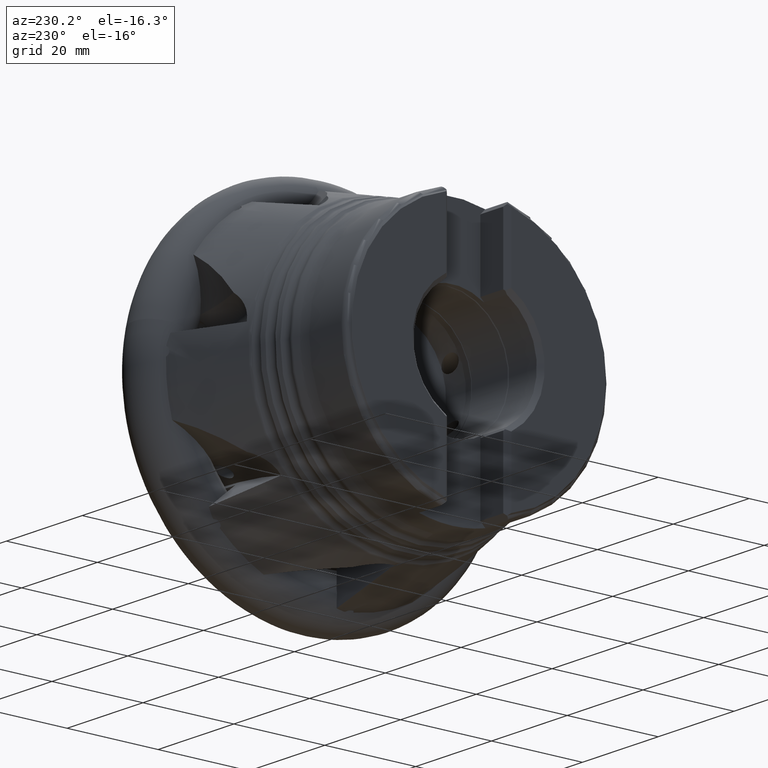
[diagram: clean part render]
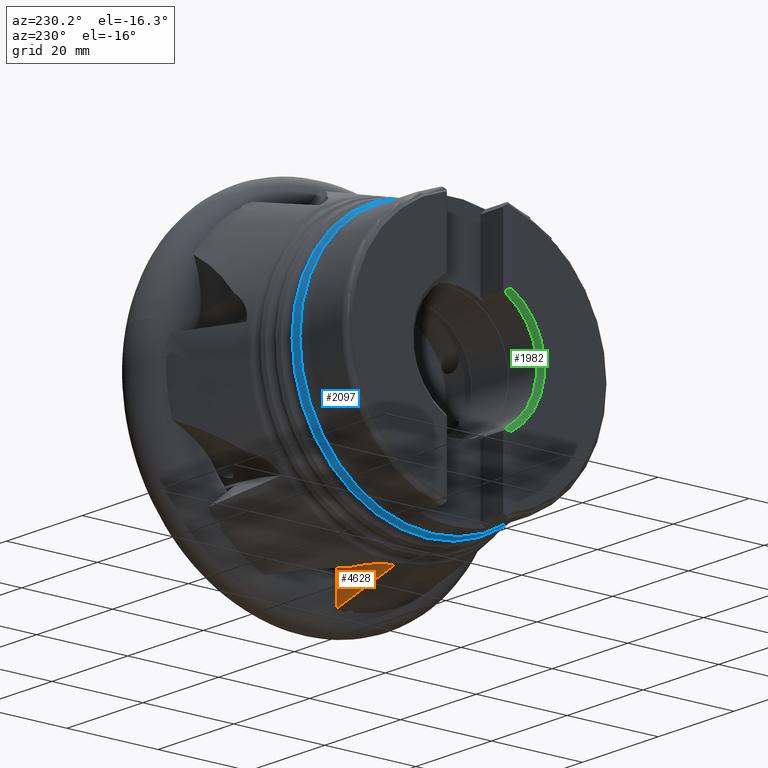
[diagram: same view with three faces highlighted in distinct colors, each labeled with its STEP entity id]
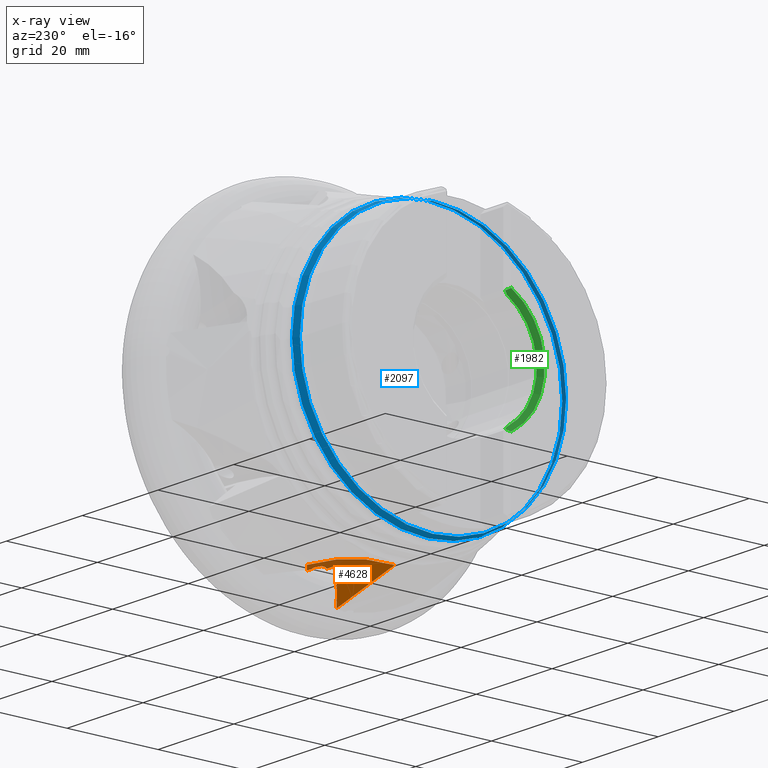
[diagram: x-ray of the same camera — body ghosted, the three highlighted faces saturated]
A machine part, auxiliary view with three faces highlighted in distinct colors.
The next image is the same camera in x-ray (body ghosted, the three faces saturated) — at least one of them is partly hidden behind the body in this view.
Their STEP definitions:

[orange] entity #4628 — the highlighted planar face has unit normal (0, -1, 0).
#4 = DIRECTION ( 'NONE',  ( 0.0000000000000000000, -0.0000000000000000000, -1.000000000000000000 ) ) ;
#31 = CARTESIAN_POINT ( 'NONE',  ( 8.049910237884031900E-015, -0.4999999999999995600, -92.73467639423688500 ) ) ;
#96 = LINE ( 'NONE', #3891, #103 ) ;
#103 = VECTOR ( 'NONE', #2852, 1000.000000000000000 ) ;
#105 = CARTESIAN_POINT ( 'NONE',  ( -10.53275845334866600, -0.4999999999999995600, -35.03540062909561200 ) ) ;
#174 = EDGE_CURVE ( 'NONE', #2457, #1430, #5767, .T. ) ;
#206 = LINE ( 'NONE', #983, #5390 ) ;
#432 = CARTESIAN_POINT ( 'NONE',  ( -19.36529589089470700, -0.5000000000000000000, -34.02495124520011400 ) ) ;
#453 = CARTESIAN_POINT ( 'NONE',  ( -10.53275845334866600, -0.5000000000000000000, -36.45980708519709900 ) ) ;
#481 = DIRECTION ( 'NONE',  ( 1.000000000000000000, -0.0000000000000000000, -3.682080252403440600E-016 ) ) ;
#530 = DIRECTION ( 'NONE',  ( 0.0000000000000000000, 0.0000000000000000000, 1.000000000000000000 ) ) ;
#626 = ORIENTED_EDGE ( 'NONE', *, *, #4750, .F. ) ;
#636 = LINE ( 'NONE', #3339, #4171 ) ;
#643 = EDGE_CURVE ( 'NONE', #3890, #5779, #1055, .T. ) ;
#702 = EDGE_CURVE ( 'NONE', #2457, #5981, #96, .T. ) ;
#868 = B_SPLINE_CURVE_WITH_KNOTS ( 'NONE', 3,
 ( #4784, #3753, #5807, #1805, #5302, #2283 ),
 .UNSPECIFIED., .F., .F.,
 ( 4, 2, 4 ),
 ( 0.02549318844404027700, 0.02659653124836304200, 0.02769987405268580600 ),
 .UNSPECIFIED. ) ;
#903 = VECTOR ( 'NONE', #940, 1000.000000000000000 ) ;
#920 = DIRECTION ( 'NONE',  ( 0.0000000000000000000, -1.000000000000000000, 0.0000000000000000000 ) ) ;
#940 = DIRECTION ( 'NONE',  ( 1.000000000000000000, -0.0000000000000000000, -0.0000000000000000000 ) ) ;
#954 = CARTESIAN_POINT ( 'NONE',  ( -14.94902862261664300, -0.5000000000000000000, -35.24238442699701300 ) ) ;
#983 = CARTESIAN_POINT ( 'NONE',  ( -5.772510203143357700, -0.4999999999999995600, -28.05864154665133000 ) ) ;
#1055 = LINE ( 'NONE', #5947, #903 ) ;
#1119 = CARTESIAN_POINT ( 'NONE',  ( -2.684159021131009600, -0.5000000000000004400, 0.0000000000000000000 ) ) ;
#1269 = ORIENTED_EDGE ( 'NONE', *, *, #174, .T. ) ;
#1310 = CARTESIAN_POINT ( 'NONE',  ( -25.76633205917305200, -0.4999999999999995600, -32.26035281082278100 ) ) ;
#1393 = EDGE_CURVE ( 'NONE', #3124, #2615, #868, .T. ) ;
#1430 = VERTEX_POINT ( 'NONE', #1310 ) ;
#1507 = ORIENTED_EDGE ( 'NONE', *, *, #3563, .T. ) ;
#1805 = CARTESIAN_POINT ( 'NONE',  ( -5.003449771525726700, -0.5000000000000000000, -27.95675597898149400 ) ) ;
#1874 = EDGE_CURVE ( 'NONE', #4118, #2615, #6026, .T. ) ;
#1962 = AXIS2_PLACEMENT_3D ( 'NONE', #2484, #920, #4 ) ;
#1984 = CARTESIAN_POINT ( 'NONE',  ( -25.76633205917305200, -0.4999999999999995600, -32.26035281082278100 ) ) ;
#1997 = DIRECTION ( 'NONE',  ( 0.0000000000000000000, 1.000000000000000000, 0.0000000000000000000 ) ) ;
#2105 = CARTESIAN_POINT ( 'NONE',  ( -10.59739075837735300, -0.5000000000000000000, -33.23319876871050800 ) ) ;
#2283 = CARTESIAN_POINT ( 'NONE',  ( -5.732449825851438700, -0.5000000000000000000, -28.05864154665835700 ) ) ;
#2345 = DIRECTION ( 'NONE',  ( -0.0000000000000000000, -0.0000000000000000000, 1.000000000000000000 ) ) ;
#2457 = VERTEX_POINT ( 'NONE', #2772 ) ;
#2465 = CARTESIAN_POINT ( 'NONE',  ( -10.53275845334866600, -0.4999999999999995600, -35.03540062909561200 ) ) ;
#2484 = CARTESIAN_POINT ( 'NONE',  ( -46.82801613358545700, -0.5000000000000000000, -46.60242535824576700 ) ) ;
#2523 = EDGE_CURVE ( 'NONE', #3124, #4478, #206, .T. ) ;
#2572 = CARTESIAN_POINT ( 'NONE',  ( -10.63010397403397500, -0.5000000000000000000, -33.59099401362970400 ) ) ;
#2613 = B_SPLINE_CURVE_WITH_KNOTS ( 'NONE', 3,
 ( #5641, #2105, #2572, #6154, #3077, #105 ),
 .UNSPECIFIED., .F., .F.,
 ( 4, 2, 4 ),
 ( 0.03489538358905709700, 0.03597279103640549400, 0.03705019848375389800 ),
 .UNSPECIFIED. ) ;
#2615 = VERTEX_POINT ( 'NONE', #3889 ) ;
#2772 = CARTESIAN_POINT ( 'NONE',  ( -10.53275845334866600, -0.5000000000000000000, -36.45980708519709900 ) ) ;
#2852 = DIRECTION ( 'NONE',  ( -0.0000000000000000000, -0.0000000000000000000, 1.000000000000000000 ) ) ;
#2938 = ORIENTED_EDGE ( 'NONE', *, *, #1393, .T. ) ;
#2956 = VECTOR ( 'NONE', #3098, 1000.000000000000000 ) ;
#2963 = CARTESIAN_POINT ( 'NONE',  ( -25.10474118897545600, -0.5000000000000000000, -32.44273674166792200 ) ) ;
#2976 = PLANE ( 'NONE',  #1962 ) ;
#3077 = CARTESIAN_POINT ( 'NONE',  ( -10.59786391923095300, -0.5000000000000000000, -34.67887673621380900 ) ) ;
#3098 = DIRECTION ( 'NONE',  ( 0.0000000000000000000, 0.0000000000000000000, 1.000000000000000000 ) ) ;
#3124 = VERTEX_POINT ( 'NONE', #3217 ) ;
#3217 = CARTESIAN_POINT ( 'NONE',  ( -3.528319268246618500, -0.5000000000000033300, -28.05864154665133000 ) ) ;
#3339 = CARTESIAN_POINT ( 'NONE',  ( -10.53275845334866600, -0.4999999999999995600, -40.89730970922777700 ) ) ;
#3421 = CARTESIAN_POINT ( 'NONE',  ( -23.78155916784575300, -0.5000000000000000000, -32.80750358500324600 ) ) ;
#3526 = DIRECTION ( 'NONE',  ( -0.0000000000000000000, 1.000000000000000000, -0.0000000000000000000 ) ) ;
#3563 = EDGE_CURVE ( 'NONE', #4849, #5981, #2613, .T. ) ;
#3613 = AXIS2_PLACEMENT_3D ( 'NONE', #4994, #1997, #5523 ) ;
#3621 = ORIENTED_EDGE ( 'NONE', *, *, #2523, .F. ) ;
#3653 = ORIENTED_EDGE ( 'NONE', *, *, #643, .F. ) ;
#3738 = CARTESIAN_POINT ( 'NONE',  ( -2.684159021131009600, -0.5000000000000000000, -28.05864154665133000 ) ) ;
#3753 = CARTESIAN_POINT ( 'NONE',  ( -3.890319731711858100, -0.5000000000000000000, -27.99098862393878000 ) ) ;
#3754 = CARTESIAN_POINT ( 'NONE',  ( -5.772510203143357700, -0.5000000000000000000, -28.05864154665133000 ) ) ;
#3860 = CARTESIAN_POINT ( 'NONE',  ( -10.53275845334866600, -0.5000000000000004400, -28.92199999999999700 ) ) ;
#3889 = CARTESIAN_POINT ( 'NONE',  ( -5.732449825851438700, -0.5000000000000000000, -28.05864154665835700 ) ) ;
#3890 = VERTEX_POINT ( 'NONE', #3860 ) ;
#3891 = CARTESIAN_POINT ( 'NONE',  ( -10.53275845334866600, -0.4999999999999995600, -40.89730970922777700 ) ) ;
#3898 = EDGE_CURVE ( 'NONE', #1430, #6222, #4285, .T. ) ;
#3969 = ORIENTED_EDGE ( 'NONE', *, *, #702, .F. ) ;
#4118 = VERTEX_POINT ( 'NONE', #3754 ) ;
#4171 = VECTOR ( 'NONE', #2345, 1000.000000000000000 ) ;
#4285 = CIRCLE ( 'NONE', #4688, 65.73467639423688500 ) ;
#4336 = CARTESIAN_POINT ( 'NONE',  ( -8.022439109956176000, -0.5000000000000000000, -28.92199999999999700 ) ) ;
#4474 = CARTESIAN_POINT ( 'NONE',  ( -10.53275845334866600, -0.4999999999999995600, -32.87926106976837600 ) ) ;
#4478 = VERTEX_POINT ( 'NONE', #3738 ) ;
#4528 = DIRECTION ( 'NONE',  ( 1.000000000000000000, -0.0000000000000000000, -3.682080252403440600E-016 ) ) ;
#4548 = CARTESIAN_POINT ( 'NONE',  ( -5.772510203143357700, -0.4999999999999995600, -28.05864154665133000 ) ) ;
#4628 = ADVANCED_FACE ( 'NONE', ( #5202 ), #2976, .F. ) ;
#4688 = AXIS2_PLACEMENT_3D ( 'NONE', #31, #3526, #530 ) ;
#4750 = EDGE_CURVE ( 'NONE', #4478, #6222, #5296, .T. ) ;
#4765 = EDGE_LOOP ( 'NONE', ( #3621, #2938, #5884, #6397, #3653, #5304, #1507, #3969, #1269, #4961, #626 ) ) ;
#4784 = CARTESIAN_POINT ( 'NONE',  ( -3.528319268246618500, -0.5000000000000033300, -28.05864154665133000 ) ) ;
#4818 = EDGE_CURVE ( 'NONE', #5779, #4118, #5124, .T. ) ;
#4849 = VERTEX_POINT ( 'NONE', #4474 ) ;
#4905 = VECTOR ( 'NONE', #4528, 1000.000000000000000 ) ;
#4922 = CARTESIAN_POINT ( 'NONE',  ( -2.684159021131009600, -0.4999999999999995600, -27.05482430088693100 ) ) ;
#4961 = ORIENTED_EDGE ( 'NONE', *, *, #3898, .T. ) ;
#4980 = CARTESIAN_POINT ( 'NONE',  ( -24.44315022363888800, -0.5000000000000000000, -32.62512032740031700 ) ) ;
#4994 = CARTESIAN_POINT ( 'NONE',  ( -5.772510203143357700, -0.4999999999999995600, -31.42199999999999000 ) ) ;
#5124 = CIRCLE ( 'NONE', #3613, 3.363358453348661100 ) ;
#5202 = FACE_OUTER_BOUND ( 'NONE', #4765, .T. ) ;
#5296 = LINE ( 'NONE', #1119, #2956 ) ;
#5302 = CARTESIAN_POINT ( 'NONE',  ( -5.369661141977717400, -0.5000000000000000000, -27.99084131635749300 ) ) ;
#5304 = ORIENTED_EDGE ( 'NONE', *, *, #6457, .F. ) ;
#5390 = VECTOR ( 'NONE', #481, 1000.000000000000000 ) ;
#5523 = DIRECTION ( 'NONE',  ( 0.0000000000000000000, 0.0000000000000000000, 1.000000000000000000 ) ) ;
#5641 = CARTESIAN_POINT ( 'NONE',  ( -10.53275845334866600, -0.4999999999999995600, -32.87926106976837600 ) ) ;
#5767 = B_SPLINE_CURVE_WITH_KNOTS ( 'NONE', 3,
 ( #453, #954, #432, #3421, #4980, #2963, #1984 ),
 .UNSPECIFIED., .F., .F.,
 ( 4, 3, 4 ),
 ( 0.02511398760421710100, 0.03885698732140936700, 0.04091579702599024100 ),
 .UNSPECIFIED. ) ;
#5779 = VERTEX_POINT ( 'NONE', #4336 ) ;
#5807 = CARTESIAN_POINT ( 'NONE',  ( -4.264149166876780600, -0.5000000000000000000, -27.95633513595106500 ) ) ;
#5884 = ORIENTED_EDGE ( 'NONE', *, *, #1874, .F. ) ;
#5947 = CARTESIAN_POINT ( 'NONE',  ( 9.807638226112164400, -0.4999999999999995600, -28.92199999999999700 ) ) ;
#5981 = VERTEX_POINT ( 'NONE', #2465 ) ;
#6026 = LINE ( 'NONE', #4548, #4905 ) ;
#6154 = CARTESIAN_POINT ( 'NONE',  ( -10.63066155495832100, -0.5000000000000000000, -34.31442415609517800 ) ) ;
#6222 = VERTEX_POINT ( 'NONE', #4922 ) ;
#6397 = ORIENTED_EDGE ( 'NONE', *, *, #4818, .F. ) ;
#6457 = EDGE_CURVE ( 'NONE', #4849, #3890, #636, .T. ) ;

[blue] entity #2097 — the highlighted conical surface has half-angle 15.41 deg.
#550 = CARTESIAN_POINT ( 'NONE',  ( -9.194248392429296100, 0.0000000000000000000, 0.0000000000000000000 ) ) ;
#555 = FACE_OUTER_BOUND ( 'NONE', #4625, .T. ) ;
#563 = FACE_BOUND ( 'NONE', #6254, .T. ) ;
#577 = DIRECTION ( 'NONE',  ( 1.000000000000000000, -0.0000000000000000000, -0.0000000000000000000 ) ) ;
#642 = VERTEX_POINT ( 'NONE', #4957 ) ;
#1045 = AXIS2_PLACEMENT_3D ( 'NONE', #1645, #5135, #2122 ) ;
#1087 = EDGE_CURVE ( 'NONE', #642, #642, #3154, .T. ) ;
#1125 = CIRCLE ( 'NONE', #4637, 29.28762351624091000 ) ;
#1541 = ORIENTED_EDGE ( 'NONE', *, *, #1087, .T. ) ;
#1645 = CARTESIAN_POINT ( 'NONE',  ( -35.02296725635950700, 0.0000000000000000000, 0.0000000000000000000 ) ) ;
#2032 = DIRECTION ( 'NONE',  ( 1.000000000000000000, -0.0000000000000000000, -0.0000000000000000000 ) ) ;
#2097 = ADVANCED_FACE ( 'NONE', ( #555, #563 ), #4000, .T. ) ;
#2122 = DIRECTION ( 'NONE',  ( 0.0000000000000000000, 0.0000000000000000000, 1.000000000000000000 ) ) ;
#3154 = CIRCLE ( 'NONE', #1045, 29.71271268514834000 ) ;
#3461 = CARTESIAN_POINT ( 'NONE',  ( -36.56514747153999400, 0.0000000000000000000, -29.28762351624091000 ) ) ;
#3544 = DIRECTION ( 'NONE',  ( 0.0000000000000000000, 0.0000000000000000000, -1.000000000000000000 ) ) ;
#3571 = CARTESIAN_POINT ( 'NONE',  ( -36.56514747153999400, 0.0000000000000000000, 0.0000000000000000000 ) ) ;
#3683 = AXIS2_PLACEMENT_3D ( 'NONE', #550, #2032, #3544 ) ;
#4000 = CONICAL_SURFACE ( 'NONE', #3683, 36.83218453917353200, 0.2689626919511460800 ) ;
#4076 = DIRECTION ( 'NONE',  ( 0.0000000000000000000, 0.0000000000000000000, -1.000000000000000000 ) ) ;
#4449 = ORIENTED_EDGE ( 'NONE', *, *, #4909, .T. ) ;
#4625 = EDGE_LOOP ( 'NONE', ( #1541 ) ) ;
#4637 = AXIS2_PLACEMENT_3D ( 'NONE', #3571, #577, #4076 ) ;
#4742 = VERTEX_POINT ( 'NONE', #3461 ) ;
#4909 = EDGE_CURVE ( 'NONE', #4742, #4742, #1125, .T. ) ;
#4957 = CARTESIAN_POINT ( 'NONE',  ( -35.02296725635950700, 0.0000000000000000000, 29.71271268514834000 ) ) ;
#5135 = DIRECTION ( 'NONE',  ( -1.000000000000000000, -0.0000000000000000000, -0.0000000000000000000 ) ) ;
#6254 = EDGE_LOOP ( 'NONE', ( #4449 ) ) ;

[green] entity #1982 — the highlighted conical surface has half-angle 45 deg.
#109 = ORIENTED_EDGE ( 'NONE', *, *, #1854, .F. ) ;
#151 = ORIENTED_EDGE ( 'NONE', *, *, #2879, .F. ) ;
#237 = ORIENTED_EDGE ( 'NONE', *, *, #1097, .T. ) ;
#286 = CARTESIAN_POINT ( 'NONE',  ( -48.15476084923346200, -6.663760849233477200, 12.35728477548641500 ) ) ;
#461 = B_SPLINE_CURVE_WITH_KNOTS ( 'NONE', 3,
 ( #4643, #4123, #5694, #2620 ),
 .UNSPECIFIED., .F., .F.,
 ( 4, 4 ),
 ( 0.0003234589733736610200, 0.001458499937099704500 ),
 .UNSPECIFIED. ) ;
#518 = CARTESIAN_POINT ( 'NONE',  ( -47.91260739461696300, -6.421607394616974500, 12.21103329250231400 ) ) ;
#629 = B_SPLINE_CURVE_WITH_KNOTS ( 'NONE', 3,
 ( #1831, #2787, #6378, #3299 ),
 .UNSPECIFIED., .F., .F.,
 ( 4, 4 ),
 ( 0.004722597664356591700, 0.005496304512859474100 ),
 .UNSPECIFIED. ) ;
#1097 = EDGE_CURVE ( 'NONE', #4691, #5148, #2681, .T. ) ;
#1148 = DIRECTION ( 'NONE',  ( -1.000000000000000000, 0.0000000000000000000, 0.0000000000000000000 ) ) ;
#1221 = EDGE_CURVE ( 'NONE', #5922, #4284, #2423, .T. ) ;
#1496 = VERTEX_POINT ( 'NONE', #5366 ) ;
#1671 = CARTESIAN_POINT ( 'NONE',  ( -47.69099999999999500, 0.0000000000000000000, 0.0000000000000000000 ) ) ;
#1831 = CARTESIAN_POINT ( 'NONE',  ( -47.90095666549106600, -6.409956665491083800, -12.20399466633745300 ) ) ;
#1854 = EDGE_CURVE ( 'NONE', #5922, #1496, #6467, .T. ) ;
#1982 = ADVANCED_FACE ( 'NONE', ( #6369 ), #2509, .F. ) ;
#2146 = DIRECTION ( 'NONE',  ( 0.0000000000000000000, 0.0000000000000000000, -1.000000000000000000 ) ) ;
#2423 = CIRCLE ( 'NONE', #3164, 13.57499999999999400 ) ;
#2467 = CARTESIAN_POINT ( 'NONE',  ( -47.90095666549106600, -6.409956665491083800, -12.20399466633745300 ) ) ;
#2491 = B_SPLINE_CURVE_WITH_KNOTS ( 'NONE', 3,
 ( #6357, #4792, #286, #3779 ),
 .UNSPECIFIED., .F., .F.,
 ( 4, 4 ),
 ( 7.678002105158196600E-005, 0.001193904132901946100 ),
 .UNSPECIFIED. ) ;
#2509 = CONICAL_SURFACE ( 'NONE', #5082, 13.57499999999999400, 0.7853981633974501700 ) ;
#2620 = CARTESIAN_POINT ( 'NONE',  ( -48.64099999999999800, -7.150000000000014600, -12.64330356354697700 ) ) ;
#2681 = CIRCLE ( 'NONE', #6444, 14.52499999999999700 ) ;
#2787 = CARTESIAN_POINT ( 'NONE',  ( -47.82539131629145100, -6.583237929944124800, -12.02762696714860600 ) ) ;
#2879 = EDGE_CURVE ( 'NONE', #4867, #4284, #629, .T. ) ;
#2898 = CARTESIAN_POINT ( 'NONE',  ( -47.69099999999999500, -7.004073004675537300, 11.62856768244375000 ) ) ;
#2993 = CARTESIAN_POINT ( 'NONE',  ( -47.69099999999999500, -7.004073004675537300, 11.62856768244375000 ) ) ;
#3045 = CARTESIAN_POINT ( 'NONE',  ( -48.64099999999999800, -7.150000000000014600, -12.64330356354697700 ) ) ;
#3110 = DIRECTION ( 'NONE',  ( 0.0000000000000000000, 0.0000000000000000000, 1.000000000000000000 ) ) ;
#3164 = AXIS2_PLACEMENT_3D ( 'NONE', #1671, #5161, #2146 ) ;
#3299 = CARTESIAN_POINT ( 'NONE',  ( -47.69099999999999500, -6.934307174471213000, -11.67030458086149700 ) ) ;
#3514 = CARTESIAN_POINT ( 'NONE',  ( -48.64099999999999800, -7.150000000000014600, 12.64330356354697600 ) ) ;
#3515 = CARTESIAN_POINT ( 'NONE',  ( -47.83150556598273800, -6.614878732464235100, 12.01776195465505200 ) ) ;
#3687 = ORIENTED_EDGE ( 'NONE', *, *, #1221, .T. ) ;
#3731 = ORIENTED_EDGE ( 'NONE', *, *, #4988, .T. ) ;
#3779 = CARTESIAN_POINT ( 'NONE',  ( -47.91260739461696300, -6.421607394616974500, 12.21103329250231400 ) ) ;
#4119 = CARTESIAN_POINT ( 'NONE',  ( -48.64099999999999800, 0.0000000000000000000, 0.0000000000000000000 ) ) ;
#4123 = CARTESIAN_POINT ( 'NONE',  ( -48.14697222556078800, -6.655972225560805800, -12.35266440973866500 ) ) ;
#4284 = VERTEX_POINT ( 'NONE', #5117 ) ;
#4636 = DIRECTION ( 'NONE',  ( 0.0000000000000000000, 0.0000000000000000000, -1.000000000000000000 ) ) ;
#4643 = CARTESIAN_POINT ( 'NONE',  ( -47.90095666549106600, -6.409956665491083800, -12.20399466633745300 ) ) ;
#4691 = VERTEX_POINT ( 'NONE', #3045 ) ;
#4792 = CARTESIAN_POINT ( 'NONE',  ( -48.39757714433554300, -6.906577144335559900, 12.50131191148371500 ) ) ;
#4838 = EDGE_LOOP ( 'NONE', ( #3731, #237, #6135, #109, #3687, #151 ) ) ;
#4867 = VERTEX_POINT ( 'NONE', #2467 ) ;
#4988 = EDGE_CURVE ( 'NONE', #4867, #4691, #461, .T. ) ;
#5082 = AXIS2_PLACEMENT_3D ( 'NONE', #5176, #6192, #3110 ) ;
#5117 = CARTESIAN_POINT ( 'NONE',  ( -47.69099999999999500, -6.934307174471213000, -11.67030458086149700 ) ) ;
#5148 = VERTEX_POINT ( 'NONE', #3514 ) ;
#5161 = DIRECTION ( 'NONE',  ( 1.000000000000000000, -0.0000000000000000000, -0.0000000000000000000 ) ) ;
#5176 = CARTESIAN_POINT ( 'NONE',  ( -47.69099999999999500, 0.0000000000000000000, 0.0000000000000000000 ) ) ;
#5366 = CARTESIAN_POINT ( 'NONE',  ( -47.91260739461696300, -6.421607394616974500, 12.21103329250231400 ) ) ;
#5583 = EDGE_CURVE ( 'NONE', #5148, #1496, #2491, .T. ) ;
#5694 = CARTESIAN_POINT ( 'NONE',  ( -48.39367303806675100, -6.902673038066764900, -12.49903459657249300 ) ) ;
#5922 = VERTEX_POINT ( 'NONE', #2898 ) ;
#6135 = ORIENTED_EDGE ( 'NONE', *, *, #5583, .T. ) ;
#6192 = DIRECTION ( 'NONE',  ( -1.000000000000000000, 0.0000000000000000000, 0.0000000000000000000 ) ) ;
#6357 = CARTESIAN_POINT ( 'NONE',  ( -48.64099999999999800, -7.150000000000014600, 12.64330356354697600 ) ) ;
#6369 = FACE_OUTER_BOUND ( 'NONE', #4838, .T. ) ;
#6378 = CARTESIAN_POINT ( 'NONE',  ( -47.75521957978019600, -6.757971307647211200, -11.84978129009711800 ) ) ;
#6444 = AXIS2_PLACEMENT_3D ( 'NONE', #4119, #1148, #4636 ) ;
#6467 = B_SPLINE_CURVE_WITH_KNOTS ( 'NONE', 3,
 ( #2993, #6578, #3515, #518 ),
 .UNSPECIFIED., .F., .F.,
 ( 4, 4 ),
 ( 0.007418720739891686300, 0.008271735620422512500 ),
 .UNSPECIFIED. ) ;
#6578 = CARTESIAN_POINT ( 'NONE',  ( -47.75745026492211300, -6.809011185131391000, 11.82362950198789700 ) ) ;